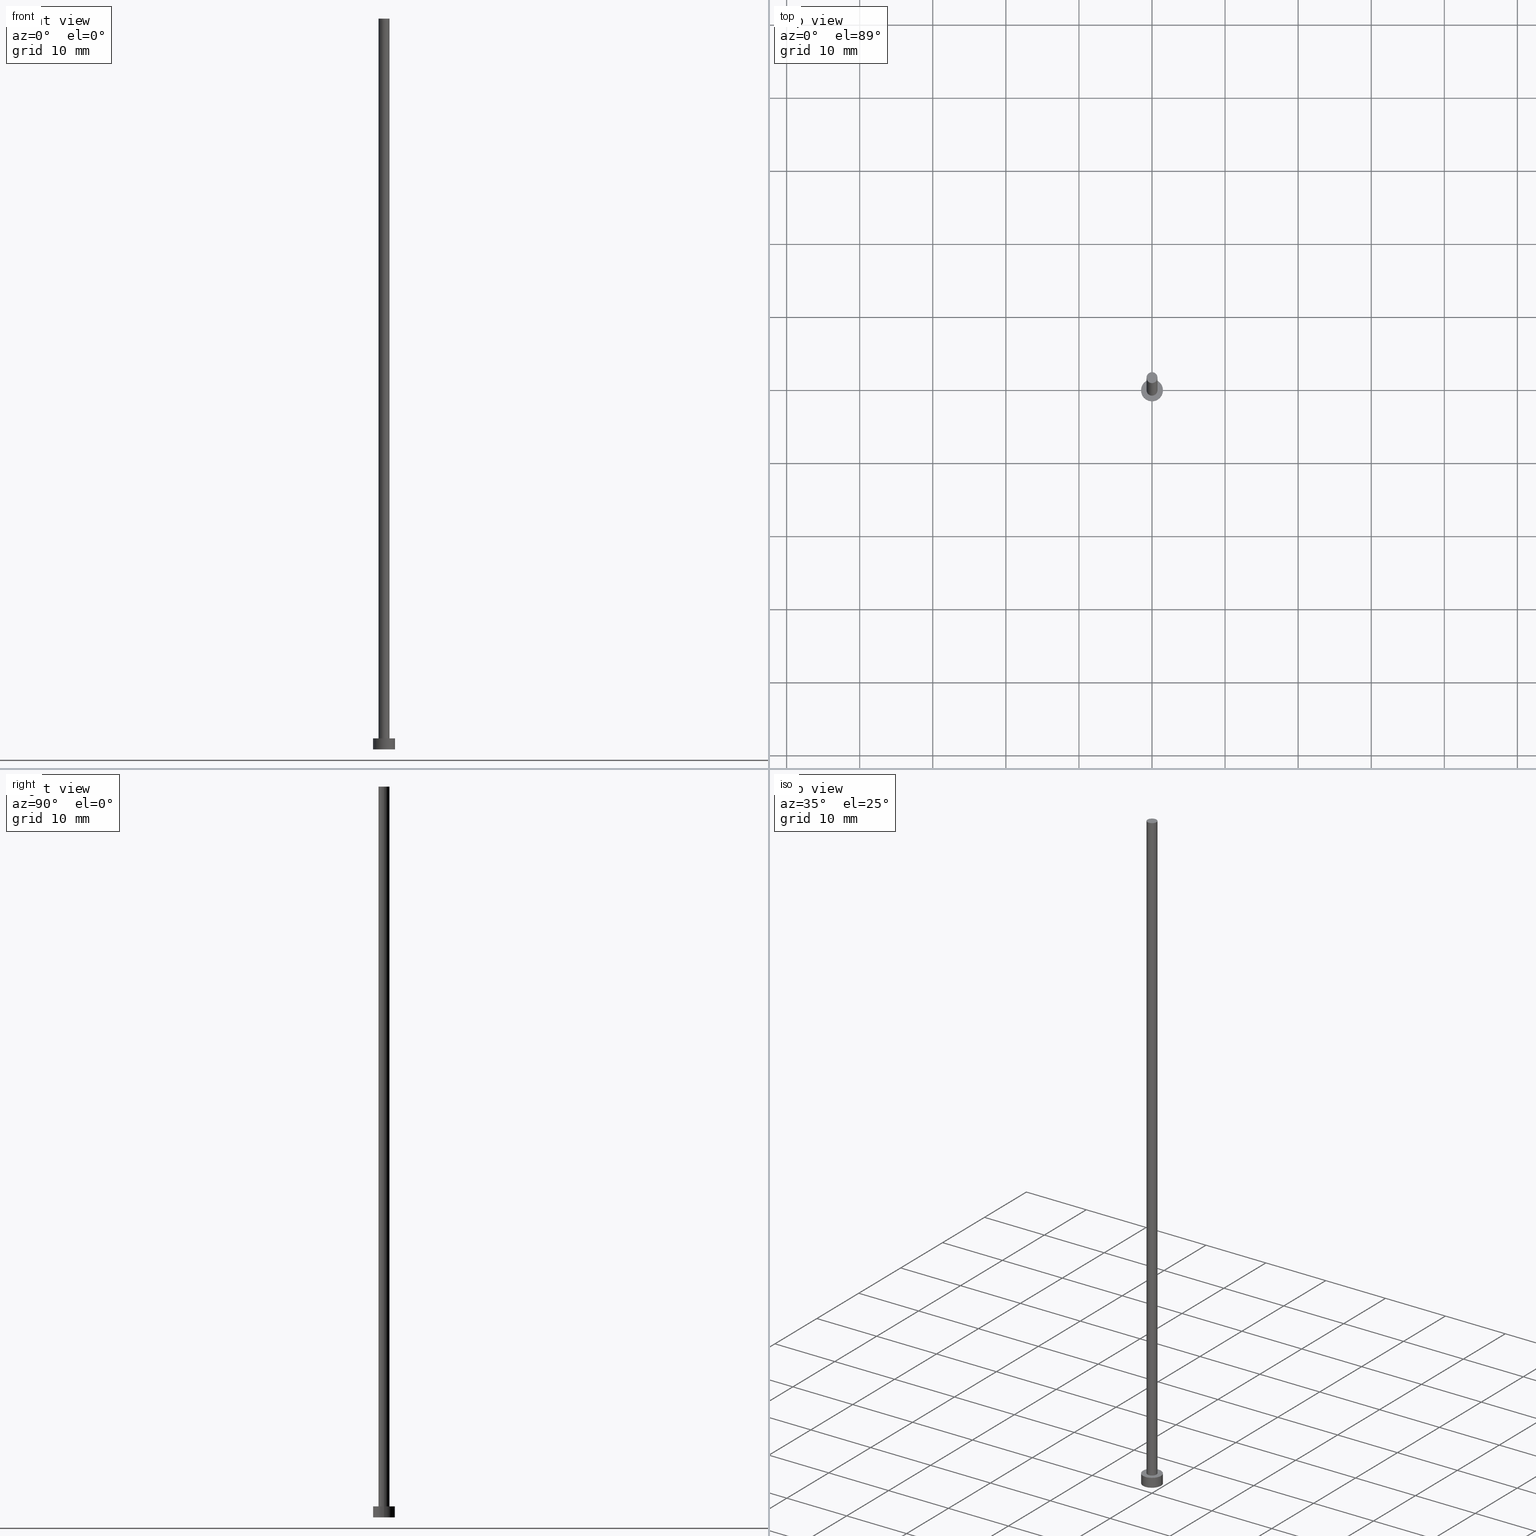
[diagram: canonical four-view strip — front | top / right | iso, engineering-drawing reading convention]
A machine part, canonical four-view strip (front | top / right | iso — engineering-drawing reading convention). The complete STEP part file that produces these views, byte-faithful:
ISO-10303-21;
HEADER;
FILE_DESCRIPTION (( 'STEP AP203' ),
    '1' );
FILE_NAME ('62a7.STEP',
    '2023-02-13T15:25:08',
    ( '' ),
    ( '' ),
    'SwSTEP 2.0',
    'SolidWorks 2019',
    '' );
FILE_SCHEMA (( 'CONFIG_CONTROL_DESIGN' ));
ENDSEC;

DATA;
#1 = AXIS2_PLACEMENT_3D ( 'NONE', #14, #177, #252 ) ;
#2 = ADVANCED_FACE ( 'NONE', ( #235, #128 ), #150, .T. ) ;
#3 = DIRECTION ( 'NONE',  ( -0.000000000000000000, -0.000000000000000000, -1.000000000000000000 ) ) ;
#4 = LOCAL_TIME ( 16, 25, 8.000000000000000000, #49 ) ;
#5 = DATE_AND_TIME ( #44, #86 ) ;
#6 = CARTESIAN_POINT ( 'NONE',  ( -1.500000000000000222, 0.000000000000000000, 0.000000000000000000 ) ) ;
#7 = AXIS2_PLACEMENT_3D ( 'NONE', #142, #76, #242 ) ;
#8 = PERSON_AND_ORGANIZATION ( #51, #234 ) ;
#9 = DIRECTION ( 'NONE',  ( 0.000000000000000000, 0.000000000000000000, 1.000000000000000000 ) ) ;
#10 = ORIENTED_EDGE ( 'NONE', *, *, #173, .F. ) ;
#11 = LOCAL_TIME ( 16, 25, 8.000000000000000000, #79 ) ;
#12 = AXIS2_PLACEMENT_3D ( 'NONE', #153, #236, #104 ) ;
#13 = DIRECTION ( 'NONE',  ( 1.000000000000000000, 0.000000000000000000, 0.000000000000000000 ) ) ;
#14 = CARTESIAN_POINT ( 'NONE',  ( 0.000000000000000000, 0.000000000000000000, 1.500000000000000000 ) ) ;
#15 = DIRECTION ( 'NONE',  ( -1.000000000000000000, 0.000000000000000000, 0.000000000000000000 ) ) ;
#16 = VERTEX_POINT ( 'NONE', #6 ) ;
#17 = MANIFOLD_SOLID_BREP ( 'P�idat vysunut�m3', #251 ) ;
#18 = CARTESIAN_POINT ( 'NONE',  ( 0.000000000000000000, 0.000000000000000000, 0.000000000000000000 ) ) ;
#19 = COORDINATED_UNIVERSAL_TIME_OFFSET ( 1, 0, .AHEAD. ) ;
#20 = CALENDAR_DATE ( 2023, 13, 2 ) ;
#21 = CC_DESIGN_PERSON_AND_ORGANIZATION_ASSIGNMENT ( #75, #204, ( #140 ) ) ;
#22 = APPROVAL_PERSON_ORGANIZATION ( #208, #55, #237 ) ;
#23 = COORDINATED_UNIVERSAL_TIME_OFFSET ( 1, 0, .AHEAD. ) ;
#24 = ADVANCED_FACE ( 'NONE', ( #45 ), #26, .T. ) ;
#25 = ORIENTED_EDGE ( 'NONE', *, *, #232, .T. ) ;
#26 = CYLINDRICAL_SURFACE ( 'NONE', #188, 0.7500000000000001110 ) ;
#27 = VECTOR ( 'NONE', #93, 1000.000000000000000 ) ;
#28 = DIRECTION ( 'NONE',  ( -0.000000000000000000, -0.000000000000000000, -1.000000000000000000 ) ) ;
#29 = ADVANCED_FACE ( 'NONE', ( #213 ), #102, .T. ) ;
#30 = CIRCLE ( 'NONE', #1, 1.500000000000000222 ) ;
#31 = DIRECTION ( 'NONE',  ( 1.000000000000000000, 0.000000000000000000, 0.000000000000000000 ) ) ;
#32 = APPROVAL_PERSON_ORGANIZATION ( #155, #118, #97 ) ;
#33 = ORIENTED_EDGE ( 'NONE', *, *, #164, .F. ) ;
#34 = CC_DESIGN_DATE_AND_TIME_ASSIGNMENT ( #166, #131, ( #246 ) ) ;
#35 = AXIS2_PLACEMENT_3D ( 'NONE', #105, #72, #134 ) ;
#36 = AXIS2_PLACEMENT_3D ( 'NONE', #52, #50, #199 ) ;
#37 = VERTEX_POINT ( 'NONE', #178 ) ;
#38 = ORIENTED_EDGE ( 'NONE', *, *, #40, .T. ) ;
#39 = DIRECTION ( 'NONE',  ( 0.000000000000000000, 0.000000000000000000, 1.000000000000000000 ) ) ;
#40 = EDGE_CURVE ( 'NONE', #225, #91, #176, .T. ) ;
#41 = DATE_AND_TIME ( #20, #4 ) ;
#42 = ADVANCED_FACE ( 'NONE', ( #156 ), #254, .T. ) ;
#43 = ORIENTED_EDGE ( 'NONE', *, *, #173, .T. ) ;
#44 = CALENDAR_DATE ( 2023, 13, 2 ) ;
#45 = FACE_OUTER_BOUND ( 'NONE', #114, .T. ) ;
#46 = CARTESIAN_POINT ( 'NONE',  ( 0.000000000000000000, 0.000000000000000000, 100.0000000000000000 ) ) ;
#47 = CIRCLE ( 'NONE', #182, 0.7500000000000001110 ) ;
#48 = ADVANCED_FACE ( 'NONE', ( #154 ), #215, .T. ) ;
#49 = COORDINATED_UNIVERSAL_TIME_OFFSET ( 1, 0, .AHEAD. ) ;
#50 = DIRECTION ( 'NONE',  ( -0.000000000000000000, -0.000000000000000000, -1.000000000000000000 ) ) ;
#51 = PERSON ( 'NEUR�EN�', 'NEUR�EN�', 'NEUR�EN�', ('NEUR�EN�'), ('NEUR�EN�'), ('NEUR�EN�') ) ;
#52 = CARTESIAN_POINT ( 'NONE',  ( 0.000000000000000000, 0.000000000000000000, 1.500000000000000000 ) ) ;
#53 = EDGE_LOOP ( 'NONE', ( #233, #255, #88, #56 ) ) ;
#54 = SECURITY_CLASSIFICATION ( '', '', #149 ) ;
#55 = APPROVAL ( #243, 'NEUR�EN�' ) ;
#56 = ORIENTED_EDGE ( 'NONE', *, *, #168, .F. ) ;
#57 = DATE_AND_TIME ( #193, #205 ) ;
#58 = APPLICATION_CONTEXT ( 'configuration controlled 3d designs of mechanical parts and assemblies' ) ;
#59 = ORIENTED_EDGE ( 'NONE', *, *, #168, .T. ) ;
#60 = PERSON_AND_ORGANIZATION ( #51, #234 ) ;
#61 = DIRECTION ( 'NONE',  ( 0.000000000000000000, 0.000000000000000000, 1.000000000000000000 ) ) ;
#62 = DIRECTION ( 'NONE',  ( 0.000000000000000000, 0.000000000000000000, 1.000000000000000000 ) ) ;
#63 = ORIENTED_EDGE ( 'NONE', *, *, #164, .T. ) ;
#64 = DIRECTION ( 'NONE',  ( 1.000000000000000000, 0.000000000000000000, -0.000000000000000000 ) ) ;
#65 = CARTESIAN_POINT ( 'NONE',  ( 1.500000000000000222, 1.836970198721030181E-16, 1.500000000000000000 ) ) ;
#66 = ORIENTED_EDGE ( 'NONE', *, *, #232, .F. ) ;
#67 = ADVANCED_FACE ( 'NONE', ( #185 ), #77, .F. ) ;
#68 = LOCAL_TIME ( 16, 25, 8.000000000000000000, #19 ) ;
#69 = DIRECTION ( 'NONE',  ( 1.000000000000000000, 0.000000000000000000, 0.000000000000000000 ) ) ;
#70 = PERSON_AND_ORGANIZATION_ROLE ( 'classification_officer' ) ;
#71 = DESIGN_CONTEXT ( 'detailed design', #58, 'design' ) ;
#72 = DIRECTION ( 'NONE',  ( 0.000000000000000000, 0.000000000000000000, 1.000000000000000000 ) ) ;
#73 = APPROVAL_DATE_TIME ( #253, #209 ) ;
#74 = ORIENTED_EDGE ( 'NONE', *, *, #144, .F. ) ;
#75 = PERSON_AND_ORGANIZATION ( #51, #234 ) ;
#76 = DIRECTION ( 'NONE',  ( 0.000000000000000000, 0.000000000000000000, 1.000000000000000000 ) ) ;
#77 = PLANE ( 'NONE',  #172 ) ;
#78 = CARTESIAN_POINT ( 'NONE',  ( -0.7500000000000001110, 0.000000000000000000, 100.0000000000000000 ) ) ;
#79 = COORDINATED_UNIVERSAL_TIME_OFFSET ( 1, 0, .AHEAD. ) ;
#80 = DIRECTION ( 'NONE',  ( -0.000000000000000000, -0.000000000000000000, -1.000000000000000000 ) ) ;
#81 = AXIS2_PLACEMENT_3D ( 'NONE', #124, #98, #64 ) ;
#82 = AXIS2_PLACEMENT_3D ( 'NONE', #110, #62, #247 ) ;
#83 = CARTESIAN_POINT ( 'NONE',  ( 0.000000000000000000, 0.000000000000000000, 1.500000000000000000 ) ) ;
#84 = DIRECTION ( 'NONE',  ( -0.000000000000000000, -0.000000000000000000, -1.000000000000000000 ) ) ;
#85 = EDGE_LOOP ( 'NONE', ( #152, #216, #63, #103 ) ) ;
#86 = LOCAL_TIME ( 16, 25, 8.000000000000000000, #23 ) ;
#87 =( LENGTH_UNIT ( ) NAMED_UNIT ( * ) SI_UNIT ( .MILLI., .METRE. ) );
#88 = ORIENTED_EDGE ( 'NONE', *, *, #219, .T. ) ;
#89 = CIRCLE ( 'NONE', #195, 0.7500000000000001110 ) ;
#90 = EDGE_LOOP ( 'NONE', ( #167, #171 ) ) ;
#91 = VERTEX_POINT ( 'NONE', #94 ) ;
#92 = CIRCLE ( 'NONE', #160, 1.500000000000000222 ) ;
#93 = DIRECTION ( 'NONE',  ( -0.000000000000000000, -0.000000000000000000, -1.000000000000000000 ) ) ;
#94 = CARTESIAN_POINT ( 'NONE',  ( 1.500000000000000222, 1.836970198721030181E-16, 0.000000000000000000 ) ) ;
#95 = CALENDAR_DATE ( 2023, 13, 2 ) ;
#96 = CC_DESIGN_APPROVAL ( #209, ( #246 ) ) ;
#97 = APPROVAL_ROLE ( '' ) ;
#98 = DIRECTION ( 'NONE',  ( 0.000000000000000000, 0.000000000000000000, 1.000000000000000000 ) ) ;
#99 = PERSON_AND_ORGANIZATION_ROLE ( 'design_supplier' ) ;
#100 = VECTOR ( 'NONE', #80, 1000.000000000000000 ) ;
#101 = ADVANCED_FACE ( 'NONE', ( #201 ), #226, .T. ) ;
#102 = PLANE ( 'NONE',  #35 ) ;
#103 = ORIENTED_EDGE ( 'NONE', *, *, #113, .T. ) ;
#104 = DIRECTION ( 'NONE',  ( 1.000000000000000000, 0.000000000000000000, 0.000000000000000000 ) ) ;
#105 = CARTESIAN_POINT ( 'NONE',  ( 0.000000000000000000, 0.000000000000000000, 100.0000000000000000 ) ) ;
#106 = CC_DESIGN_DATE_AND_TIME_ASSIGNMENT ( #57, #228, ( #54 ) ) ;
#107 = CARTESIAN_POINT ( 'NONE',  ( 0.7500000000000001110, 9.184850993605150903E-17, 100.0000000000000000 ) ) ;
#108 = DIRECTION ( 'NONE',  ( 1.000000000000000000, 0.000000000000000000, 0.000000000000000000 ) ) ;
#109 = ORIENTED_EDGE ( 'NONE', *, *, #144, .T. ) ;
#110 = CARTESIAN_POINT ( 'NONE',  ( 0.000000000000000000, 0.000000000000000000, 0.000000000000000000 ) ) ;
#111 = CARTESIAN_POINT ( 'NONE',  ( 1.500000000000000222, 1.836970198721030181E-16, 1.500000000000000000 ) ) ;
#112 = APPROVAL_PERSON_ORGANIZATION ( #180, #209, #117 ) ;
#113 = EDGE_CURVE ( 'NONE', #16, #91, #125, .T. ) ;
#114 = EDGE_LOOP ( 'NONE', ( #135, #220, #59, #109 ) ) ;
#115 = CARTESIAN_POINT ( 'NONE',  ( -1.500000000000000222, 0.000000000000000000, 1.500000000000000000 ) ) ;
#116 = CARTESIAN_POINT ( 'NONE',  ( 0.000000000000000000, 0.000000000000000000, 1.500000000000000000 ) ) ;
#117 = APPROVAL_ROLE ( '' ) ;
#118 = APPROVAL ( #211, 'NEUR�EN�' ) ;
#119 = CC_DESIGN_PERSON_AND_ORGANIZATION_ASSIGNMENT ( #60, #206, ( #250 ) ) ;
#120 = APPLICATION_PROTOCOL_DEFINITION ( 'international standard', 'config_control_design', 1994, #58 ) ;
#121 = CARTESIAN_POINT ( 'NONE',  ( 0.000000000000000000, 0.000000000000000000, 100.0000000000000000 ) ) ;
#122 = AXIS2_PLACEMENT_3D ( 'NONE', #83, #133, #108 ) ;
#123 = VERTEX_POINT ( 'NONE', #196 ) ;
#124 = CARTESIAN_POINT ( 'NONE',  ( 0.000000000000000000, 0.000000000000000000, 1.500000000000000000 ) ) ;
#125 = CIRCLE ( 'NONE', #12, 1.500000000000000222 ) ;
#126 = DIRECTION ( 'NONE',  ( -1.000000000000000000, 0.000000000000000000, 0.000000000000000000 ) ) ;
#127 = CC_DESIGN_SECURITY_CLASSIFICATION ( #54, ( #250 ) ) ;
#128 = FACE_OUTER_BOUND ( 'NONE', #181, .T. ) ;
#129 = LINE ( 'NONE', #107, #229 ) ;
#130 = EDGE_CURVE ( 'NONE', #123, #225, #30, .T. ) ;
#131 = DATE_TIME_ROLE ( 'creation_date' ) ;
#132 = CC_DESIGN_PERSON_AND_ORGANIZATION_ASSIGNMENT ( #8, #99, ( #250 ) ) ;
#133 = DIRECTION ( 'NONE',  ( 0.000000000000000000, 0.000000000000000000, 1.000000000000000000 ) ) ;
#134 = DIRECTION ( 'NONE',  ( 1.000000000000000000, 0.000000000000000000, -0.000000000000000000 ) ) ;
#135 = ORIENTED_EDGE ( 'NONE', *, *, #174, .F. ) ;
#136 = DIRECTION ( 'NONE',  ( 0.000000000000000000, 0.000000000000000000, 1.000000000000000000 ) ) ;
#137 = SHAPE_DEFINITION_REPRESENTATION ( #189, #210 ) ;
#138 = ORIENTED_EDGE ( 'NONE', *, *, #113, .F. ) ;
#139 = LINE ( 'NONE', #115, #27 ) ;
#140 = PRODUCT ( '62a7', '62a7', '', ( #192 ) ) ;
#141 = CC_DESIGN_APPROVAL ( #55, ( #250 ) ) ;
#142 = CARTESIAN_POINT ( 'NONE',  ( 0.000000000000000000, 0.000000000000000000, 1.500000000000000000 ) ) ;
#143 = VERTEX_POINT ( 'NONE', #179 ) ;
#144 = EDGE_CURVE ( 'NONE', #143, #163, #89, .T. ) ;
#145 = ORIENTED_EDGE ( 'NONE', *, *, #130, .T. ) ;
#146 = AXIS2_PLACEMENT_3D ( 'NONE', #238, #239, #31 ) ;
#147 = CARTESIAN_POINT ( 'NONE',  ( 0.000000000000000000, 0.000000000000000000, 0.000000000000000000 ) ) ;
#148 = DIRECTION ( 'NONE',  ( 1.000000000000000000, 0.000000000000000000, -0.000000000000000000 ) ) ;
#149 = SECURITY_CLASSIFICATION_LEVEL ( 'unclassified' ) ;
#150 = PLANE ( 'NONE',  #81 ) ;
#151 = PERSON_AND_ORGANIZATION ( #51, #234 ) ;
#152 = ORIENTED_EDGE ( 'NONE', *, *, #40, .F. ) ;
#153 = CARTESIAN_POINT ( 'NONE',  ( 0.000000000000000000, 0.000000000000000000, 0.000000000000000000 ) ) ;
#154 = FACE_OUTER_BOUND ( 'NONE', #200, .T. ) ;
#155 = PERSON_AND_ORGANIZATION ( #51, #234 ) ;
#156 = FACE_OUTER_BOUND ( 'NONE', #85, .T. ) ;
#157 =( NAMED_UNIT ( * ) PLANE_ANGLE_UNIT ( ) SI_UNIT ( $, .RADIAN. ) );
#158 = PERSON_AND_ORGANIZATION ( #51, #234 ) ;
#159 = CARTESIAN_POINT ( 'NONE',  ( 0.000000000000000000, 0.000000000000000000, 1.500000000000000000 ) ) ;
#160 = AXIS2_PLACEMENT_3D ( 'NONE', #147, #61, #69 ) ;
#161 = EDGE_LOOP ( 'NONE', ( #138, #10 ) ) ;
#162 = CARTESIAN_POINT ( 'NONE',  ( -0.7500000000000001110, 0.000000000000000000, 100.0000000000000000 ) ) ;
#163 = VERTEX_POINT ( 'NONE', #223 ) ;
#164 = EDGE_CURVE ( 'NONE', #123, #16, #139, .T. ) ;
#165 = APPLICATION_CONTEXT ( 'configuration controlled 3d designs of mechanical parts and assemblies' ) ;
#166 = DATE_AND_TIME ( #95, #11 ) ;
#167 = ORIENTED_EDGE ( 'NONE', *, *, #207, .T. ) ;
#168 = EDGE_CURVE ( 'NONE', #169, #143, #184, .T. ) ;
#169 = VERTEX_POINT ( 'NONE', #162 ) ;
#170 =( NAMED_UNIT ( * ) SI_UNIT ( $, .STERADIAN. ) SOLID_ANGLE_UNIT ( ) );
#171 = ORIENTED_EDGE ( 'NONE', *, *, #203, .T. ) ;
#172 = AXIS2_PLACEMENT_3D ( 'NONE', #18, #39, #148 ) ;
#173 = EDGE_CURVE ( 'NONE', #91, #16, #92, .T. ) ;
#174 = EDGE_CURVE ( 'NONE', #37, #163, #129, .T. ) ;
#175 = CC_DESIGN_PERSON_AND_ORGANIZATION_ASSIGNMENT ( #151, #70, ( #54 ) ) ;
#176 = LINE ( 'NONE', #111, #249 ) ;
#177 = DIRECTION ( 'NONE',  ( 0.000000000000000000, 0.000000000000000000, 1.000000000000000000 ) ) ;
#178 = CARTESIAN_POINT ( 'NONE',  ( 0.7500000000000001110, 9.184850993605150903E-17, 100.0000000000000000 ) ) ;
#179 = CARTESIAN_POINT ( 'NONE',  ( -0.7500000000000001110, 0.000000000000000000, 1.500000000000000000 ) ) ;
#180 = PERSON_AND_ORGANIZATION ( #51, #234 ) ;
#181 = EDGE_LOOP ( 'NONE', ( #145, #25 ) ) ;
#182 = AXIS2_PLACEMENT_3D ( 'NONE', #194, #9, #13 ) ;
#183 = CIRCLE ( 'NONE', #146, 0.7500000000000001110 ) ;
#184 = LINE ( 'NONE', #78, #100 ) ;
#185 = FACE_OUTER_BOUND ( 'NONE', #161, .T. ) ;
#186 = DIRECTION ( 'NONE',  ( 1.000000000000000000, 0.000000000000000000, 0.000000000000000000 ) ) ;
#187 = EDGE_LOOP ( 'NONE', ( #74, #197 ) ) ;
#188 = AXIS2_PLACEMENT_3D ( 'NONE', #46, #84, #126 ) ;
#189 = PRODUCT_DEFINITION_SHAPE ( 'NONE', 'NONE',  #246 ) ;
#190 = CC_DESIGN_PERSON_AND_ORGANIZATION_ASSIGNMENT ( #158, #227, ( #246 ) ) ;
#191 = CIRCLE ( 'NONE', #122, 1.500000000000000222 ) ;
#192 = MECHANICAL_CONTEXT ( 'NONE', #165, 'mechanical' ) ;
#193 = CALENDAR_DATE ( 2023, 13, 2 ) ;
#194 = CARTESIAN_POINT ( 'NONE',  ( 0.000000000000000000, 0.000000000000000000, 100.0000000000000000 ) ) ;
#195 = AXIS2_PLACEMENT_3D ( 'NONE', #116, #136, #186 ) ;
#196 = CARTESIAN_POINT ( 'NONE',  ( -1.500000000000000222, 0.000000000000000000, 1.500000000000000000 ) ) ;
#197 = ORIENTED_EDGE ( 'NONE', *, *, #219, .F. ) ;
#198 =( GEOMETRIC_REPRESENTATION_CONTEXT ( 3 ) GLOBAL_UNCERTAINTY_ASSIGNED_CONTEXT ( ( #230 ) ) GLOBAL_UNIT_ASSIGNED_CONTEXT ( ( #87, #157, #170 ) ) REPRESENTATION_CONTEXT ( 'NONE', 'WORKASPACE' ) );
#199 = DIRECTION ( 'NONE',  ( -1.000000000000000000, 0.000000000000000000, 0.000000000000000000 ) ) ;
#200 = EDGE_LOOP ( 'NONE', ( #66, #38, #43, #33 ) ) ;
#201 = FACE_OUTER_BOUND ( 'NONE', #53, .T. ) ;
#202 = CALENDAR_DATE ( 2023, 13, 2 ) ;
#203 = EDGE_CURVE ( 'NONE', #37, #169, #47, .T. ) ;
#204 = PERSON_AND_ORGANIZATION_ROLE ( 'design_owner' ) ;
#205 = LOCAL_TIME ( 16, 25, 8.000000000000000000, #231 ) ;
#206 = PERSON_AND_ORGANIZATION_ROLE ( 'creator' ) ;
#207 = EDGE_CURVE ( 'NONE', #169, #37, #183, .T. ) ;
#208 = PERSON_AND_ORGANIZATION ( #51, #234 ) ;
#209 = APPROVAL ( #224, 'NEUR�EN�' ) ;
#210 = ADVANCED_BREP_SHAPE_REPRESENTATION ( '62a7', ( #17, #82 ), #198 ) ;
#211 = APPROVAL_STATUS ( 'not_yet_approved' ) ;
#212 = AXIS2_PLACEMENT_3D ( 'NONE', #159, #240, #222 ) ;
#213 = FACE_OUTER_BOUND ( 'NONE', #90, .T. ) ;
#214 = CC_DESIGN_APPROVAL ( #118, ( #54 ) ) ;
#215 = CYLINDRICAL_SURFACE ( 'NONE', #212, 1.500000000000000222 ) ;
#216 = ORIENTED_EDGE ( 'NONE', *, *, #130, .F. ) ;
#217 = DIRECTION ( 'NONE',  ( -0.000000000000000000, -0.000000000000000000, -1.000000000000000000 ) ) ;
#218 = APPROVAL_DATE_TIME ( #41, #118 ) ;
#219 = EDGE_CURVE ( 'NONE', #163, #143, #241, .T. ) ;
#220 = ORIENTED_EDGE ( 'NONE', *, *, #207, .F. ) ;
#221 = AXIS2_PLACEMENT_3D ( 'NONE', #121, #3, #15 ) ;
#222 = DIRECTION ( 'NONE',  ( -1.000000000000000000, 0.000000000000000000, 0.000000000000000000 ) ) ;
#223 = CARTESIAN_POINT ( 'NONE',  ( 0.7500000000000001110, 9.184850993605150903E-17, 1.500000000000000000 ) ) ;
#224 = APPROVAL_STATUS ( 'not_yet_approved' ) ;
#225 = VERTEX_POINT ( 'NONE', #65 ) ;
#226 = CYLINDRICAL_SURFACE ( 'NONE', #221, 0.7500000000000001110 ) ;
#227 = PERSON_AND_ORGANIZATION_ROLE ( 'creator' ) ;
#228 = DATE_TIME_ROLE ( 'classification_date' ) ;
#229 = VECTOR ( 'NONE', #28, 1000.000000000000000 ) ;
#230 = UNCERTAINTY_MEASURE_WITH_UNIT (LENGTH_MEASURE( 1.000000000000000082E-05 ), #87, 'distance_accuracy_value', 'NONE');
#231 = COORDINATED_UNIVERSAL_TIME_OFFSET ( 1, 0, .AHEAD. ) ;
#232 = EDGE_CURVE ( 'NONE', #225, #123, #191, .T. ) ;
#233 = ORIENTED_EDGE ( 'NONE', *, *, #203, .F. ) ;
#234 = ORGANIZATION ( 'NEUR�EN�', 'NEUR�EN�', '' ) ;
#235 = FACE_BOUND ( 'NONE', #187, .T. ) ;
#236 = DIRECTION ( 'NONE',  ( 0.000000000000000000, 0.000000000000000000, 1.000000000000000000 ) ) ;
#237 = APPROVAL_ROLE ( '' ) ;
#238 = CARTESIAN_POINT ( 'NONE',  ( 0.000000000000000000, 0.000000000000000000, 100.0000000000000000 ) ) ;
#239 = DIRECTION ( 'NONE',  ( 0.000000000000000000, 0.000000000000000000, 1.000000000000000000 ) ) ;
#240 = DIRECTION ( 'NONE',  ( -0.000000000000000000, -0.000000000000000000, -1.000000000000000000 ) ) ;
#241 = CIRCLE ( 'NONE', #7, 0.7500000000000001110 ) ;
#242 = DIRECTION ( 'NONE',  ( 1.000000000000000000, 0.000000000000000000, 0.000000000000000000 ) ) ;
#243 = APPROVAL_STATUS ( 'not_yet_approved' ) ;
#244 = APPROVAL_DATE_TIME ( #5, #55 ) ;
#245 = APPLICATION_PROTOCOL_DEFINITION ( 'international standard', 'config_control_design', 1994, #165 ) ;
#246 = PRODUCT_DEFINITION ( 'NEZN�M�', '', #250, #71 ) ;
#247 = DIRECTION ( 'NONE',  ( 1.000000000000000000, 0.000000000000000000, 0.000000000000000000 ) ) ;
#248 = PRODUCT_RELATED_PRODUCT_CATEGORY ( 'detail', '', ( #140 ) ) ;
#249 = VECTOR ( 'NONE', #217, 1000.000000000000000 ) ;
#250 = PRODUCT_DEFINITION_FORMATION_WITH_SPECIFIED_SOURCE ( 'LIBOVOLN�', '', #140, .NOT_KNOWN. ) ;
#251 = CLOSED_SHELL ( 'NONE', ( #101, #48, #42, #2, #67, #24, #29 ) ) ;
#252 = DIRECTION ( 'NONE',  ( 1.000000000000000000, 0.000000000000000000, 0.000000000000000000 ) ) ;
#253 = DATE_AND_TIME ( #202, #68 ) ;
#254 = CYLINDRICAL_SURFACE ( 'NONE', #36, 1.500000000000000222 ) ;
#255 = ORIENTED_EDGE ( 'NONE', *, *, #174, .T. ) ;
ENDSEC;
END-ISO-10303-21;
